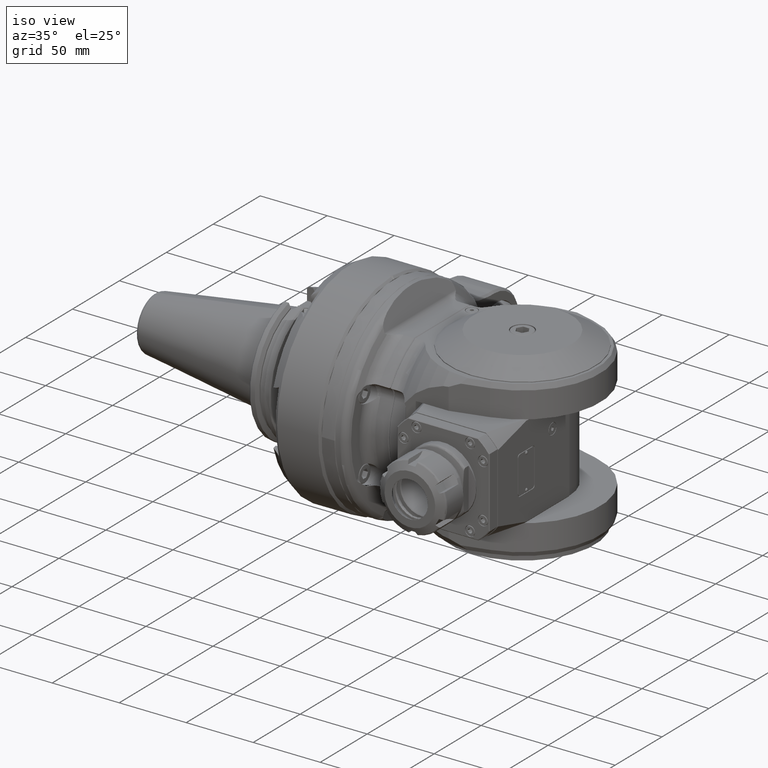
[diagram: clean part render]
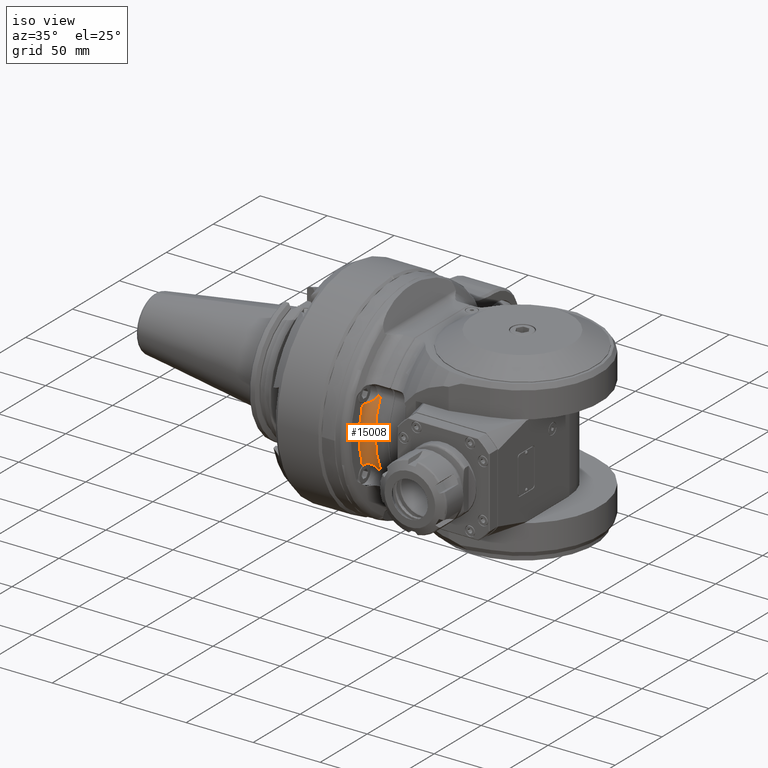
[diagram: same view with one face highlighted and labeled with its STEP entity id]
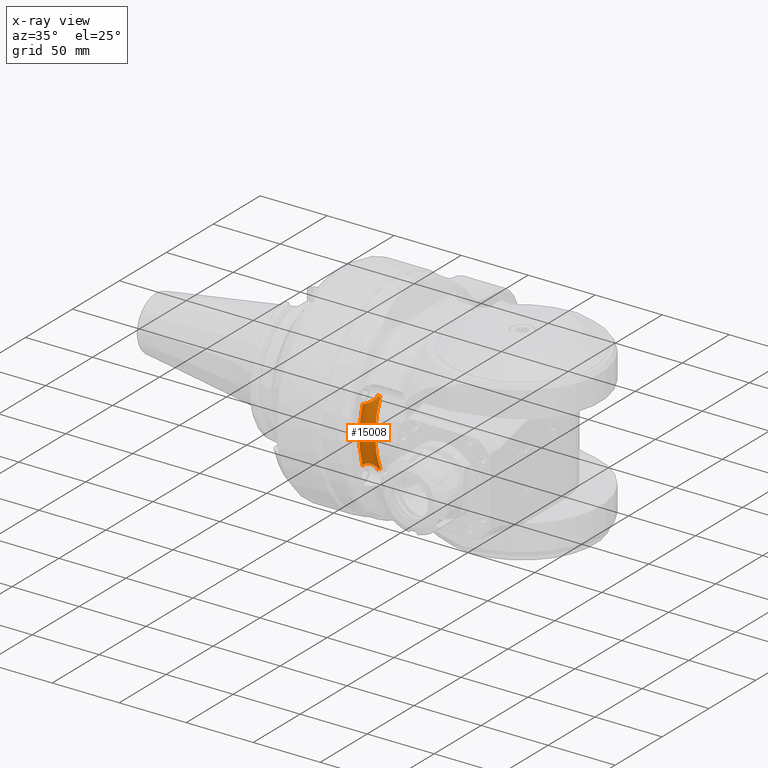
[diagram: x-ray of the same camera — body ghosted, the highlighted face saturated]
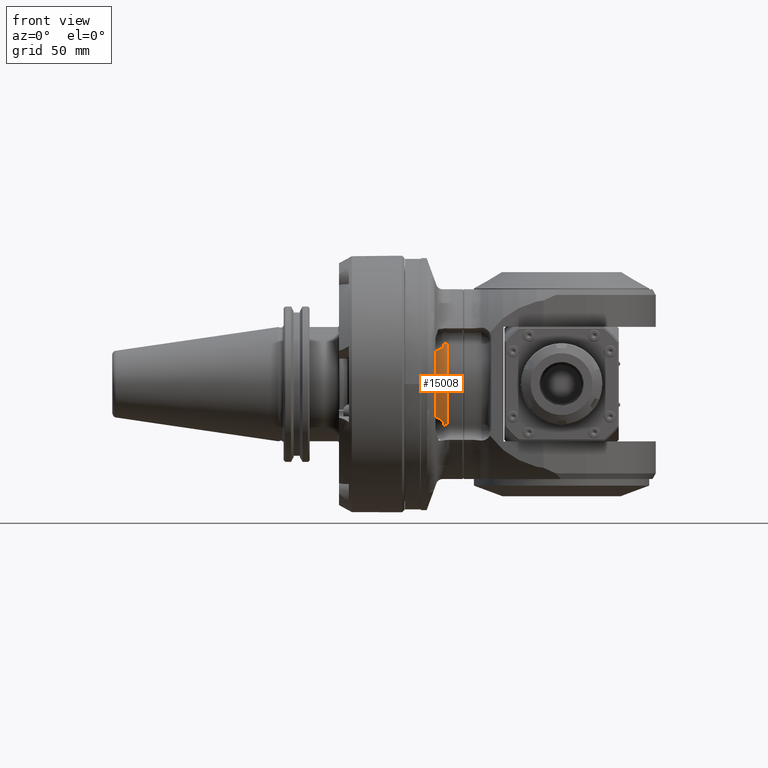
[diagram: same view with one face highlighted and labeled with its STEP entity id]
A machine part, iso view. The second image highlights one B-rep face of the part: STEP entity #15008.
The next image is the same camera in x-ray: the body ghosted, the highlighted face saturated — about 0% of this face is hidden behind the body in this view.
A second angle (front view) of the same face is appended — the face is thin or edge-on in the first view.
In plain terms, the highlighted toroidal blend (fillet) surface has major radius 64 mm and minor (blend) radius 7 mm.
Its self-contained STEP definition (entity closure, byte-faithful):
#477=TOROIDAL_SURFACE('',#16496,64.,7.);
#747=B_SPLINE_CURVE_WITH_KNOTS('',3,(#38282,#38283,#38284,#38285,#38286,
#38287,#38288,#38289,#38290,#38291,#38292,#38293,#38294,#38295,#38296,#38297,
#38298,#38299,#38300,#38301),.UNSPECIFIED.,.F.,.F.,(4,2,2,2,2,2,2,2,2,4),
(0.,0.04203694988741,0.182533244287924,0.2353144278207,0.4275342961332,
0.6188514235496,0.8095797054542,0.904808911476,0.9524066635859,1.),
 .UNSPECIFIED.);
#796=B_SPLINE_CURVE_WITH_KNOTS('',3,(#39308,#39309,#39310,#39311,#39312,
#39313,#39314,#39315,#39316,#39317,#39318,#39319,#39320,#39321,#39322,#39323,
#39324,#39325,#39326,#39327,#39328,#39329,#39330,#39331),.UNSPECIFIED.,
 .F.,.F.,(4,2,2,2,2,2,2,2,2,2,2,4),(2.05337544616422,2.05726499473803,2.11561287175908,
2.13864825232236,2.15553285183149,2.17385992838047,2.19916765794469,2.26146325082275,
2.41542275802002,2.59273706075555,2.91131056301995,3.07526384360169),
 .UNSPECIFIED.);
#797=B_SPLINE_CURVE_WITH_KNOTS('',3,(#39333,#39334,#39335,#39336,#39337,
#39338,#39339,#39340),.UNSPECIFIED.,.F.,.F.,(4,2,2,4),(3.07526384360169,
3.10681741098167,3.26220608936287,3.27995294130143),.UNSPECIFIED.);
#798=B_SPLINE_CURVE_WITH_KNOTS('',3,(#39343,#39344,#39345,#39346,#39347,
#39348,#39349,#39350,#39351,#39352,#39353,#39354,#39355,#39356,#39357,#39358,
#39359,#39360,#39361,#39362,#39363,#39364,#39365,#39366,#39367,#39368,#39369,
#39370),.UNSPECIFIED.,.F.,.F.,(4,2,2,2,2,2,2,2,2,2,2,2,2,4),(1.02543342703064,
1.14067623621094,1.30349361822175,1.51268479946863,1.87035572964733,2.05726499457773,
2.11561287159079,2.13864825215186,2.15553285165878,2.17385992820565,2.19916765776862,
2.26146325063924,2.41542275781261,2.42416399250933),.UNSPECIFIED.);
#1769=FACE_OUTER_BOUND('',#2712,.T.);
#2712=EDGE_LOOP('',(#12467,#12468,#12469,#12470,#12471,#12472,#12473));
#5758=CIRCLE('',#16495,57.);
#5759=CIRCLE('',#16497,7.);
#5760=CIRCLE('',#16498,64.);
#6845=VERTEX_POINT('',#37956);
#6852=VERTEX_POINT('',#38281);
#6948=VERTEX_POINT('',#39301);
#6949=VERTEX_POINT('',#39305);
#6950=VERTEX_POINT('',#39307);
#6951=VERTEX_POINT('',#39332);
#6952=VERTEX_POINT('',#39341);
#8751=EDGE_CURVE('',#6852,#6845,#747,.T.);
#8906=EDGE_CURVE('',#6845,#6948,#5758,.T.);
#8907=EDGE_CURVE('',#6948,#6949,#5759,.T.);
#8908=EDGE_CURVE('',#6949,#6950,#796,.T.);
#8909=EDGE_CURVE('',#6950,#6951,#797,.T.);
#8910=EDGE_CURVE('',#6952,#6951,#5760,.T.);
#8911=EDGE_CURVE('',#6952,#6852,#798,.T.);
#12467=ORIENTED_EDGE('',*,*,#8751,.T.);
#12468=ORIENTED_EDGE('',*,*,#8906,.T.);
#12469=ORIENTED_EDGE('',*,*,#8907,.T.);
#12470=ORIENTED_EDGE('',*,*,#8908,.T.);
#12471=ORIENTED_EDGE('',*,*,#8909,.T.);
#12472=ORIENTED_EDGE('',*,*,#8910,.F.);
#12473=ORIENTED_EDGE('',*,*,#8911,.T.);
#15008=ADVANCED_FACE('',(#1769),#477,.F.);
#16495=AXIS2_PLACEMENT_3D('',#39303,#19849,#19850);
#16496=AXIS2_PLACEMENT_3D('',#39304,#19851,#19852);
#16497=AXIS2_PLACEMENT_3D('',#39306,#19853,#19854);
#16498=AXIS2_PLACEMENT_3D('',#39342,#19855,#19856);
#19849=DIRECTION('center_axis',(-1.,0.,0.));
#19850=DIRECTION('ref_axis',(0.,0.,-1.));
#19851=DIRECTION('center_axis',(-1.,0.,0.));
#19852=DIRECTION('ref_axis',(0.,0.00806301439439985,-0.999967493371097));
#19853=DIRECTION('center_axis',(0.,-0.902977658828695,0.429687499999998));
#19854=DIRECTION('ref_axis',(0.,0.429687499999998,0.902977658828695));
#19855=DIRECTION('center_axis',(-1.,0.,0.));
#19856=DIRECTION('ref_axis',(0.,0.,-1.));
#37956=CARTESIAN_POINT('',(-10.,24.4921875,-51.46972655324));
#38281=CARTESIAN_POINT('',(-12.3544021936895,25.5001302886945,-51.4334674059962));
#38282=CARTESIAN_POINT('Ctrl Pts',(-12.3544019074844,25.500130441251,-51.4334672603567));
#38283=CARTESIAN_POINT('Ctrl Pts',(-12.3225555947856,25.4838926486429,-51.428822616262));
#38284=CARTESIAN_POINT('Ctrl Pts',(-12.2906581607548,25.4677162573808,-51.4244128578142));
#38285=CARTESIAN_POINT('Ctrl Pts',(-12.1518265268249,25.3978560383992,-51.4061831387545));
#38286=CARTESIAN_POINT('Ctrl Pts',(-12.0441248605897,25.345068173523,-51.3945146023765));
#38287=CARTESIAN_POINT('Ctrl Pts',(-11.8950514396442,25.2737711249967,-51.3817964470389));
#38288=CARTESIAN_POINT('Ctrl Pts',(-11.8542480275723,25.2544368461852,-51.3786649652321));
#38289=CARTESIAN_POINT('Ctrl Pts',(-11.6644505324538,25.1653199620641,-51.3657238940949));
#38290=CARTESIAN_POINT('Ctrl Pts',(-11.5144212526599,25.0971912221393,-51.3601329325092));
#38291=CARTESIAN_POINT('Ctrl Pts',(-11.2133352130023,24.9650640375779,-51.3580104403732));
#38292=CARTESIAN_POINT('Ctrl Pts',(-11.0622864297745,24.9010482549396,-51.3614376386624));
#38293=CARTESIAN_POINT('Ctrl Pts',(-10.7595170237316,24.7771763219631,-51.377208653528));
#38294=CARTESIAN_POINT('Ctrl Pts',(-10.6077998954316,24.7173078247845,-51.3895246769983));
#38295=CARTESIAN_POINT('Ctrl Pts',(-10.3799400201807,24.6304814678323,-51.4146813725879));
#38296=CARTESIAN_POINT('Ctrl Pts',(-10.3039933127949,24.6020545252542,-51.4241716446979));
#38297=CARTESIAN_POINT('Ctrl Pts',(-10.1899738978972,24.5603291471429,-51.4399909120589));
#38298=CARTESIAN_POINT('Ctrl Pts',(-10.1519576064299,24.5465755473813,-51.4455268566007));
#38299=CARTESIAN_POINT('Ctrl Pts',(-10.0760324427146,24.5190669249025,-51.457272044621));
#38300=CARTESIAN_POINT('Ctrl Pts',(-10.03812356089,24.5053119025123,-51.4634812257571));
#38301=CARTESIAN_POINT('Ctrl Pts',(-10.,24.4921875,-51.46972655324));
#39301=CARTESIAN_POINT('',(-10.,-24.4921875,-51.46972655324));
#39303=CARTESIAN_POINT('Origin',(-10.,0.,0.));
#39304=CARTESIAN_POINT('Origin',(-10.,0.,0.));
#39305=CARTESIAN_POINT('',(-11.91345314471,-24.6067415014,-51.71045895526));
#39306=CARTESIAN_POINT('Origin',(-10.,-27.5,-57.79057016504));
#39307=CARTESIAN_POINT('',(-16.5200216055787,-20.2975687514,-58.00369837035));
#39308=CARTESIAN_POINT('Ctrl Pts',(-11.9134531447135,-24.6067415013988,
-51.7104589552593));
#39309=CARTESIAN_POINT('Ctrl Pts',(-11.9120221803956,-24.6016244768131,
-51.712443588645));
#39310=CARTESIAN_POINT('Ctrl Pts',(-11.9106226509547,-24.5965346116229,
-51.7144248674504));
#39311=CARTESIAN_POINT('Ctrl Pts',(-11.8887210062069,-24.5155166748429,
-51.7460740781642));
#39312=CARTESIAN_POINT('Ctrl Pts',(-11.8733436784323,-24.4390097589327,
-51.7775419238361));
#39313=CARTESIAN_POINT('Ctrl Pts',(-11.8604565957045,-24.3311559461706,
-51.8243206723922));
#39314=CARTESIAN_POINT('Ctrl Pts',(-11.8577713250086,-24.3005494913135,
-51.8378633836282));
#39315=CARTESIAN_POINT('Ctrl Pts',(-11.8548712254261,-24.2473172362151,
-51.8618988186354));
#39316=CARTESIAN_POINT('Ctrl Pts',(-11.8541892800882,-24.2247619714662,
-51.8722316987794));
#39317=CARTESIAN_POINT('Ctrl Pts',(-11.8539383186563,-24.177611244087,-51.8941504063983));
#39318=CARTESIAN_POINT('Ctrl Pts',(-11.8544696937434,-24.1530626532415,
-51.9057415597359));
#39319=CARTESIAN_POINT('Ctrl Pts',(-11.8573410906247,-24.094553888666,-51.9338038349264));
#39320=CARTESIAN_POINT('Ctrl Pts',(-11.8602850966664,-24.0607333402642,
-51.950373782486));
#39321=CARTESIAN_POINT('Ctrl Pts',(-11.8748841153802,-23.9439042651371,
-52.0088341538919));
#39322=CARTESIAN_POINT('Ctrl Pts',(-11.8928043218346,-23.8627446607553,
-52.0515835154338));
#39323=CARTESIAN_POINT('Ctrl Pts',(-11.9775752260272,-23.5863320914412,
-52.2043114291174));
#39324=CARTESIAN_POINT('Ctrl Pts',(-12.0928119599306,-23.3491577298438,
-52.3456154594193));
#39325=CARTESIAN_POINT('Ctrl Pts',(-12.5724997176824,-22.7241590719932,
-52.8034491829448));
#39326=CARTESIAN_POINT('Ctrl Pts',(-12.9233639812047,-22.380611647859,-53.1021328374534));
#39327=CARTESIAN_POINT('Ctrl Pts',(-14.0219592930919,-21.453490717255,-54.1237154341331));
#39328=CARTESIAN_POINT('Ctrl Pts',(-14.8731942156204,-20.8855289448875,
-55.0100014371407));
#39329=CARTESIAN_POINT('Ctrl Pts',(-15.9536491693652,-20.394619226383,-56.7138358314904));
#39330=CARTESIAN_POINT('Ctrl Pts',(-16.2757700293336,-20.2975687514,-57.3413730620182));
#39331=CARTESIAN_POINT('Ctrl Pts',(-16.5200216055787,-20.2975687514,-58.00369837035));
#39332=CARTESIAN_POINT('',(-17.,-20.7880693986,-60.52979572639));
#39333=CARTESIAN_POINT('Ctrl Pts',(-16.5200216055787,-20.2975687514,-58.00369837035));
#39334=CARTESIAN_POINT('Ctrl Pts',(-16.5670289514602,-20.2975687514,-58.1311659401953));
#39335=CARTESIAN_POINT('Ctrl Pts',(-16.6111560764464,-20.3011777618562,
-58.2599205619658));
#39336=CARTESIAN_POINT('Ctrl Pts',(-16.8541067161173,-20.3452944400642,
-59.0297936321728));
#39337=CARTESIAN_POINT('Ctrl Pts',(-16.9738360178632,-20.473723990418,-59.6783487651658));
#39338=CARTESIAN_POINT('Ctrl Pts',(-16.998733096939,-20.7316169946583,-60.3863900188709));
#39339=CARTESIAN_POINT('Ctrl Pts',(-17.,-20.7592537079085,-60.458392382908));
#39340=CARTESIAN_POINT('Ctrl Pts',(-17.,-20.7880693985928,-60.5297957263929));
#39341=CARTESIAN_POINT('',(-17.,20.7880693986,-60.52979572639));
#39342=CARTESIAN_POINT('Origin',(-17.,0.,0.));
#39343=CARTESIAN_POINT('Ctrl Pts',(-17.,20.7880693985928,-60.5297957263929));
#39344=CARTESIAN_POINT('Ctrl Pts',(-16.9999999999998,20.6095732416651,-60.0874942544821));
#39345=CARTESIAN_POINT('Ctrl Pts',(-16.9513677058789,20.4789647677918,-59.6288361209942));
#39346=CARTESIAN_POINT('Ctrl Pts',(-16.717043054215,20.2826148905784,-58.5009654293457));
#39347=CARTESIAN_POINT('Ctrl Pts',(-16.4887827204873,20.2704549073298,-57.850742858661));
#39348=CARTESIAN_POINT('Ctrl Pts',(-15.8140200113327,20.4339934541933,-56.4329671756004));
#39349=CARTESIAN_POINT('Ctrl Pts',(-15.3304894122948,20.6617545062602,-55.6990096114966));
#39350=CARTESIAN_POINT('Ctrl Pts',(-13.9037048205761,21.5242967476543,-53.9295533410653));
#39351=CARTESIAN_POINT('Ctrl Pts',(-12.9496196834442,22.2831909334322,-53.1483712553616));
#39352=CARTESIAN_POINT('Ctrl Pts',(-12.1116250473768,23.3039406303019,-52.3697024830258));
#39353=CARTESIAN_POINT('Ctrl Pts',(-11.9750281557087,23.5807622284681,-52.2061138309787));
#39354=CARTESIAN_POINT('Ctrl Pts',(-11.8887210062067,23.8815221371384,-52.0417105863241));
#39355=CARTESIAN_POINT('Ctrl Pts',(-11.8733436784323,23.9548056030543,-52.0033300298326));
#39356=CARTESIAN_POINT('Ctrl Pts',(-11.8604565957044,24.0599672979437,-51.950778015865));
#39357=CARTESIAN_POINT('Ctrl Pts',(-11.8577713250086,24.0900150665887,-51.9360371981825));
#39358=CARTESIAN_POINT('Ctrl Pts',(-11.8548712254262,24.1426443120252,-51.9107086047866));
#39359=CARTESIAN_POINT('Ctrl Pts',(-11.8541892800882,24.1650580021554,-51.9000721168913));
#39360=CARTESIAN_POINT('Ctrl Pts',(-11.8539383186563,24.2121566096762,-51.8780416378703));
#39361=CARTESIAN_POINT('Ctrl Pts',(-11.8544696937436,24.2368154783119,-51.8666869760135));
#39362=CARTESIAN_POINT('Ctrl Pts',(-11.8573410906248,24.2959211372065,-51.8399047448304));
#39363=CARTESIAN_POINT('Ctrl Pts',(-11.8602850966661,24.3303538829216,-51.8246476586488));
#39364=CARTESIAN_POINT('Ctrl Pts',(-11.8748841153803,24.4502334075253,-51.7727289972494));
#39365=CARTESIAN_POINT('Ctrl Pts',(-11.8928043218348,24.5351497064854,-51.7380358932279));
#39366=CARTESIAN_POINT('Ctrl Pts',(-11.9775752260265,24.8298206507844,-51.6244631910675));
#39367=CARTESIAN_POINT('Ctrl Pts',(-12.0928119599277,25.0905185589568,-51.5336055691919));
#39368=CARTESIAN_POINT('Ctrl Pts',(-12.3284042456016,25.4600804823144,-51.4429972709949));
#39369=CARTESIAN_POINT('Ctrl Pts',(-12.3412915713748,25.4800488417982,-51.4381970977399));
#39370=CARTESIAN_POINT('Ctrl Pts',(-12.3544024549349,25.5001301393345,-51.4334674960284));